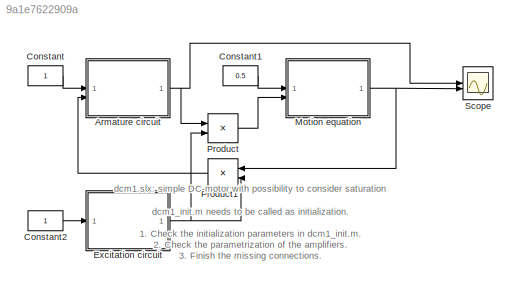
MODEL slx_9a1e7622909a
KIND model
CONFIG AbsTol = auto
CONFIG EnableMultiTasking = on
CONFIG FixedStep = auto
CONFIG MaxStep = auto
CONFIG MinStep = auto
CONFIG RelTol = 1e-3
CONFIG SampleTimeConstraint = Unconstrained
CONFIG SolverName = ode45
CONFIG StartTime = 0.0
CONFIG StopTime = 2
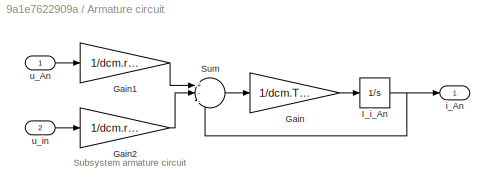
BLOCK [SubSystem] Armature circuit
BLOCK [Gain] Armature circuit/Gain
  Gain = 1/dcm.T_A
  OutDataTypeStr = Inherit: Same as input
  ParamDataTypeStr = Inherit: Same as input
  SaturateOnIntegerOverflow = on
BLOCK [Gain] Armature circuit/Gain1
  Gain = 1/dcm.r_A
  OutDataTypeStr = Inherit: Same as input
  ParamDataTypeStr = Inherit: Same as input
  SaturateOnIntegerOverflow = on
BLOCK [Gain] Armature circuit/Gain2
  Gain = 1/dcm.r_A
  OutDataTypeStr = Inherit: Same as input
  ParamDataTypeStr = Inherit: Same as input
  SaturateOnIntegerOverflow = on
BLOCK [Integrator] Armature circuit/I_i_An
BLOCK [Sum] Armature circuit/Sum
  InputSameDT = on
  Inputs = +--
  OutDataTypeStr = Inherit: Same as first input
  SaturateOnIntegerOverflow = on
BLOCK [Outport] Armature circuit/i_An
BLOCK [Inport] Armature circuit/u_An
BLOCK [Inport] Armature circuit/u_in
  Port = 2
BLOCK [Constant] Constant
BLOCK [Constant] Constant1
  Value = 0.5
BLOCK [Constant] Constant2
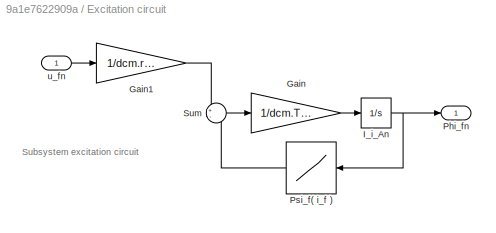
BLOCK [SubSystem] Excitation circuit
BLOCK [Gain] Excitation circuit/Gain
  Gain = 1/dcm.T_f
  OutDataTypeStr = Inherit: Same as input
  ParamDataTypeStr = Inherit: Same as input
  SaturateOnIntegerOverflow = on
BLOCK [Gain] Excitation circuit/Gain1
  Gain = 1/dcm.r_f
  OutDataTypeStr = Inherit: Same as input
  ParamDataTypeStr = Inherit: Same as input
  SaturateOnIntegerOverflow = on
BLOCK [Integrator] Excitation circuit/I_i_An
  InitialCondition = dcm.Pfi_f0
BLOCK [Outport] Excitation circuit/Phi_fn
BLOCK [Lookup] Excitation circuit/Psi_f( i_f )
  InputValues = dcm.Phi_f
  Table = dcm.i_f
BLOCK [Sum] Excitation circuit/Sum
  InputSameDT = on
  Inputs = +-
  OutDataTypeStr = Inherit: Same as first input
  SaturateOnIntegerOverflow = on
BLOCK [Inport] Excitation circuit/u_fn
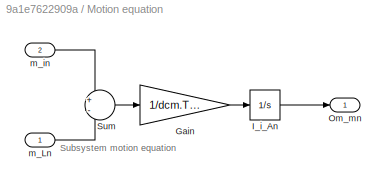
BLOCK [SubSystem] Motion equation
BLOCK [Gain] Motion equation/Gain
  Gain = 1/dcm.T_J
  OutDataTypeStr = Inherit: Same as input
  ParamDataTypeStr = Inherit: Same as input
  SaturateOnIntegerOverflow = on
BLOCK [Integrator] Motion equation/I_i_An
  InitialCondition = dcm.Om_m0
BLOCK [Outport] Motion equation/Om_mn
BLOCK [Sum] Motion equation/Sum
  InputSameDT = on
  Inputs = +-
  OutDataTypeStr = Inherit: Same as first input
  SaturateOnIntegerOverflow = on
BLOCK [Inport] Motion equation/m_Ln
BLOCK [Inport] Motion equation/m_in
  Port = 2
BLOCK [Product] Product
  InputSameDT = on
  OutDataTypeStr = Inherit: Same as first input
  SaturateOnIntegerOverflow = on
BLOCK [Product] Product1
  InputSameDT = on
  OutDataTypeStr = Inherit: Same as first input
  SaturateOnIntegerOverflow = on
BLOCK [Scope] Scope
  Floating = off
  NumInputPorts = 2
  ScopeSpecificationString = Simulink.scopes.TimeScopeBlockCfg('CurrentConfiguration', extmgr.ConfigurationSet(extmgr.Configuration('Core','General UI',true),extmgr.Configuration('Core','Source UI',true),extmgr.Configuration('Sources','WiredSimulink',true,'DataLoggingSaveFormat','StructureWithTime','DataLoggingLimitDataPoints',true,'DataLoggingDecimation','1','DataLoggingDecimateData',true),extmgr.Configuration('Visuals','Tim...<+2385ch>
ANNOTATION (root): dcm1.slx: simple DC-motor with possibility to consider saturation dcm1_init.m needs to be called as initialization. 1. Check the initialization parameters in dcm1_init.m. 2. Check the parametrization of the amplifiers. 3. Finish the missing connections. 4. The model is prepared to simulate a load step from 0 to 0.5*M_N @ t=0. Validate the model with this simulation.
ANNOTATION Armature circuit: Subsystem armature circuit
ANNOTATION Excitation circuit: Subsystem excitation circuit
ANNOTATION Motion equation: Subsystem motion equation
LINE Armature circuit/Gain1:1 -> Armature circuit/Sum:1
LINE Armature circuit/Gain2:1 -> Armature circuit/Sum:2
LINE Armature circuit/Gain:1 -> Armature circuit/I_i_An:1
NET Armature circuit/I_i_An:1 -> Armature circuit/Sum:3, Armature circuit/i_An:1
LINE Armature circuit/Sum:1 -> Armature circuit/Gain:1
LINE Armature circuit/u_An:1 -> Armature circuit/Gain1:1
LINE Armature circuit/u_in:1 -> Armature circuit/Gain2:1
NET Armature circuit:1 -> Product:1, Scope:1
LINE Constant1:1 -> Motion equation:1
LINE Constant2:1 -> Excitation circuit:1
LINE Constant:1 -> Armature circuit:1
LINE Excitation circuit/Gain1:1 -> Excitation circuit/Sum:1
LINE Excitation circuit/Gain:1 -> Excitation circuit/I_i_An:1
NET Excitation circuit/I_i_An:1 -> Excitation circuit/Phi_fn:1, Excitation circuit/Psi_f( i_f ):1
LINE Excitation circuit/Psi_f( i_f ):1 -> Excitation circuit/Sum:2
LINE Excitation circuit/Sum:1 -> Excitation circuit/Gain:1
LINE Excitation circuit/u_fn:1 -> Excitation circuit/Gain1:1
NET Excitation circuit:1 -> Product1:2, Product:2
LINE Motion equation/Gain:1 -> Motion equation/I_i_An:1
LINE Motion equation/I_i_An:1 -> Motion equation/Om_mn:1
LINE Motion equation/Sum:1 -> Motion equation/Gain:1
LINE Motion equation/m_Ln:1 -> Motion equation/Sum:2
LINE Motion equation/m_in:1 -> Motion equation/Sum:1
NET Motion equation:1 -> Product1:1, Scope:2
LINE Product1:1 -> Armature circuit:2
LINE Product:1 -> Motion equation:2
note: NET lines group one-source signal fan-out (src -> all destinations, sorted); 1:1 wires keep LINE
